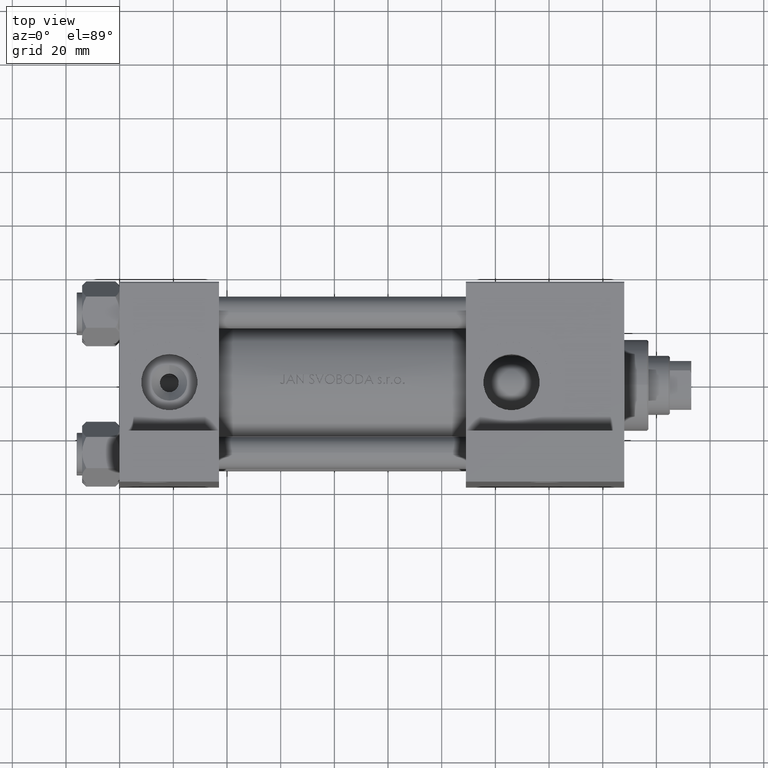
[diagram: clean part render]
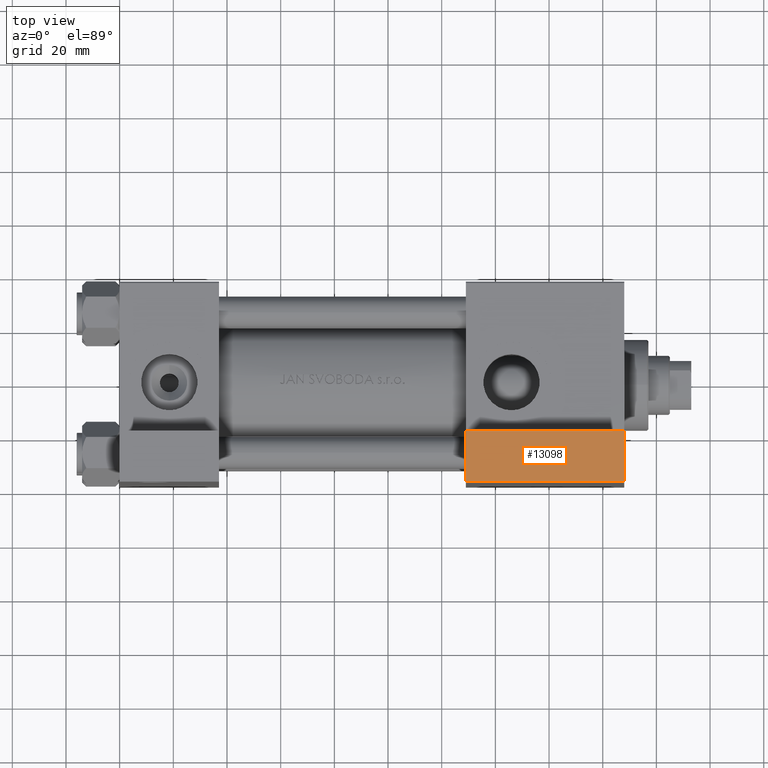
[diagram: same view with one face highlighted and labeled with its STEP entity id]
A machine part, top view. The second image highlights one B-rep face of the part: STEP entity #13098.
In plain terms, the highlighted planar face has unit normal (-0, 0, 1).
Its self-contained STEP definition (entity closure, byte-faithful):
#189 = CARTESIAN_POINT ( 'NONE',  ( 129.0000000000000000, -63.50000000000000000, -18.50000000000000000 ) ) ;
#682 = VECTOR ( 'NONE', #26570, 1000.000000000000000 ) ;
#3170 = LINE ( 'NONE', #40799, #8287 ) ;
#5878 = VECTOR ( 'NONE', #44537, 1000.000000000000000 ) ;
#7661 = EDGE_CURVE ( 'NONE', #31396, #39190, #45529, .T. ) ;
#8287 = VECTOR ( 'NONE', #17879, 1000.000000000000000 ) ;
#8753 = LINE ( 'NONE', #16980, #12708 ) ;
#9063 = ORIENTED_EDGE ( 'NONE', *, *, #43214, .T. ) ;
#9158 = VERTEX_POINT ( 'NONE', #42803 ) ;
#12708 = VECTOR ( 'NONE', #47341, 1000.000000000000000 ) ;
#13098 = ADVANCED_FACE ( 'NONE', ( #42347 ), #23893, .T. ) ;
#15973 = CARTESIAN_POINT ( 'NONE',  ( 129.0000000000000000, -63.50000000000000000, -37.50000000000000000 ) ) ;
#16980 = CARTESIAN_POINT ( 'NONE',  ( 129.0000000000000000, -63.50000000000000000, -37.50000000000000000 ) ) ;
#17071 = ORIENTED_EDGE ( 'NONE', *, *, #7661, .T. ) ;
#17879 = DIRECTION ( 'NONE',  ( 0.000000000000000000, 0.000000000000000000, -1.000000000000000000 ) ) ;
#21494 = ORIENTED_EDGE ( 'NONE', *, *, #43289, .F. ) ;
#23893 = PLANE ( 'NONE',  #33346 ) ;
#24781 = EDGE_LOOP ( 'NONE', ( #29574, #21494, #17071, #9063 ) ) ;
#26570 = DIRECTION ( 'NONE',  ( -1.000000000000000000, 4.704334850106595794E-16, -0.000000000000000000 ) ) ;
#26888 = DIRECTION ( 'NONE',  ( 1.000000000000000000, -4.704334850106595794E-16, 0.000000000000000000 ) ) ;
#29405 = CARTESIAN_POINT ( 'NONE',  ( 188.0000000000000000, -63.50000000000002842, -18.50000000000000000 ) ) ;
#29572 = CARTESIAN_POINT ( 'NONE',  ( 129.0000000000000000, -63.50000000000000000, -18.50000000000000000 ) ) ;
#29574 = ORIENTED_EDGE ( 'NONE', *, *, #33601, .F. ) ;
#29783 = CARTESIAN_POINT ( 'NONE',  ( 129.0000000000000000, -63.50000000000000000, -18.50000000000000000 ) ) ;
#29807 = LINE ( 'NONE', #29572, #5878 ) ;
#31396 = VERTEX_POINT ( 'NONE', #29405 ) ;
#33346 = AXIS2_PLACEMENT_3D ( 'NONE', #39109, #47067, #26888 ) ;
#33601 = EDGE_CURVE ( 'NONE', #9158, #39672, #8753, .T. ) ;
#39109 = CARTESIAN_POINT ( 'NONE',  ( 129.0000000000000000, -63.50000000000000000, -18.50000000000000000 ) ) ;
#39190 = VERTEX_POINT ( 'NONE', #29783 ) ;
#39672 = VERTEX_POINT ( 'NONE', #15973 ) ;
#40799 = CARTESIAN_POINT ( 'NONE',  ( 188.0000000000000000, -63.50000000000002842, -18.50000000000000000 ) ) ;
#42347 = FACE_OUTER_BOUND ( 'NONE', #24781, .T. ) ;
#42803 = CARTESIAN_POINT ( 'NONE',  ( 188.0000000000000000, -63.50000000000002842, -37.50000000000000000 ) ) ;
#43214 = EDGE_CURVE ( 'NONE', #39190, #39672, #29807, .T. ) ;
#43289 = EDGE_CURVE ( 'NONE', #31396, #9158, #3170, .T. ) ;
#44537 = DIRECTION ( 'NONE',  ( 0.000000000000000000, 0.000000000000000000, -1.000000000000000000 ) ) ;
#45529 = LINE ( 'NONE', #189, #682 ) ;
#47067 = DIRECTION ( 'NONE',  ( -4.704334850106595794E-16, -1.000000000000000000, 0.000000000000000000 ) ) ;
#47341 = DIRECTION ( 'NONE',  ( -1.000000000000000000, 4.704334850106595794E-16, -0.000000000000000000 ) ) ;